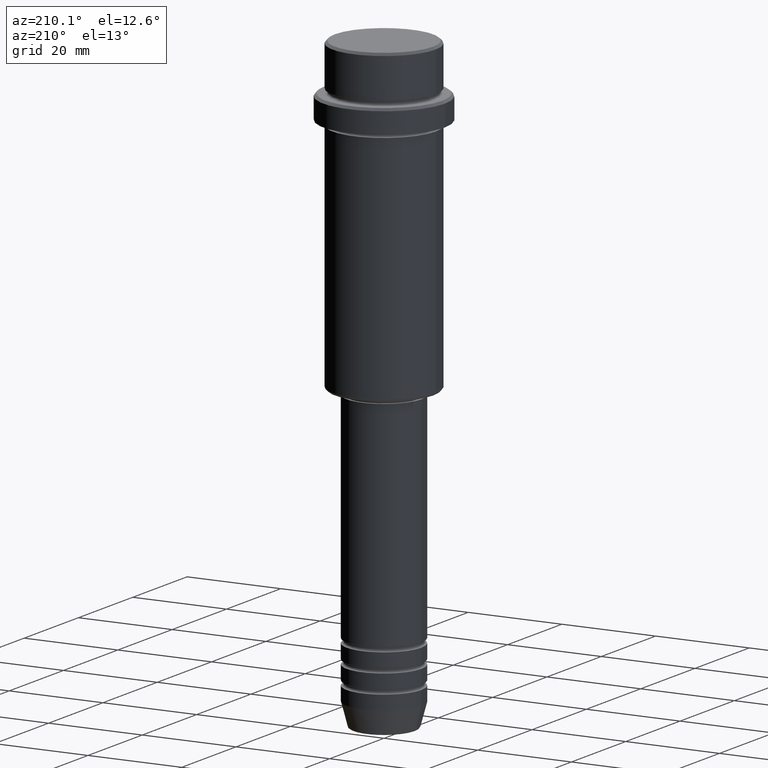
[diagram: clean part render]
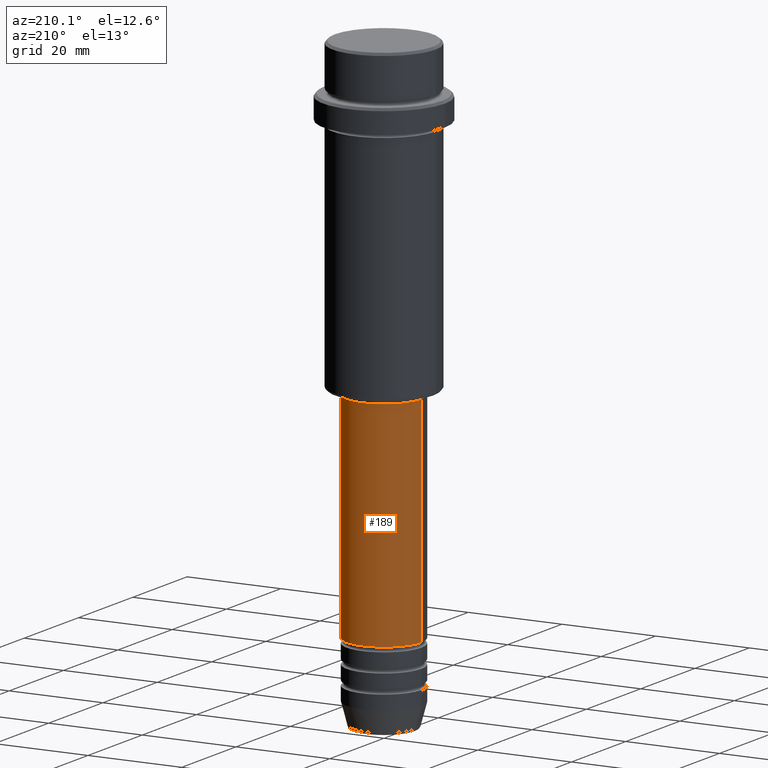
[diagram: same view with one face highlighted and labeled with its STEP entity id]
A machine part, auxiliary view. The second image highlights one B-rep face of the part: STEP entity #189.
In plain terms, the highlighted cylindrical surface (partial cylindrical patch) has radius 8 mm, axis along (-0, -0, 1).
Its self-contained STEP definition (entity closure, byte-faithful):
#7 = VERTEX_POINT ( 'NONE', #1386 ) ;
#58 = DIRECTION ( 'NONE',  ( -0.000000000000000000, -0.000000000000000000, 1.000000000000000000 ) ) ;
#87 = EDGE_CURVE ( 'NONE', #624, #749, #90, .T. ) ;
#90 = LINE ( 'NONE', #519, #1255 ) ;
#92 = ORIENTED_EDGE ( 'NONE', *, *, #542, .F. ) ;
#105 = CIRCLE ( 'NONE', #691, 8.000000000000000000 ) ;
#164 = EDGE_CURVE ( 'NONE', #296, #7, #797, .T. ) ;
#189 = ADVANCED_FACE ( 'NONE', ( #1299 ), #443, .T. ) ;
#200 = DIRECTION ( 'NONE',  ( -0.000000000000000000, -0.000000000000000000, 1.000000000000000000 ) ) ;
#220 = DIRECTION ( 'NONE',  ( 1.000000000000000000, 0.000000000000000000, 0.000000000000000000 ) ) ;
#231 = AXIS2_PLACEMENT_3D ( 'NONE', #1391, #58, #515 ) ;
#241 = ORIENTED_EDGE ( 'NONE', *, *, #164, .T. ) ;
#296 = VERTEX_POINT ( 'NONE', #674 ) ;
#389 = ORIENTED_EDGE ( 'NONE', *, *, #87, .F. ) ;
#391 = DIRECTION ( 'NONE',  ( -0.000000000000000000, -0.000000000000000000, 1.000000000000000000 ) ) ;
#443 = CYLINDRICAL_SURFACE ( 'NONE', #757, 8.000000000000000000 ) ;
#515 = DIRECTION ( 'NONE',  ( 1.000000000000000000, 0.000000000000000000, 0.000000000000000000 ) ) ;
#519 = CARTESIAN_POINT ( 'NONE',  ( 8.000000000000000000, 0.000000000000000000, 0.000000000000000000 ) ) ;
#532 = DIRECTION ( 'NONE',  ( -0.000000000000000000, -0.000000000000000000, 1.000000000000000000 ) ) ;
#542 = EDGE_CURVE ( 'NONE', #749, #7, #105, .T. ) ;
#546 = DIRECTION ( 'NONE',  ( 1.000000000000000000, 0.000000000000000000, 0.000000000000000000 ) ) ;
#624 = VERTEX_POINT ( 'NONE', #1356 ) ;
#674 = CARTESIAN_POINT ( 'NONE',  ( -8.000000000000000000, 9.797174393178825657E-16, -112.9999999999998721 ) ) ;
#691 = AXIS2_PLACEMENT_3D ( 'NONE', #1298, #532, #220 ) ;
#749 = VERTEX_POINT ( 'NONE', #1331 ) ;
#757 = AXIS2_PLACEMENT_3D ( 'NONE', #1414, #897, #546 ) ;
#797 = LINE ( 'NONE', #1247, #1365 ) ;
#875 = ORIENTED_EDGE ( 'NONE', *, *, #1071, .T. ) ;
#887 = EDGE_LOOP ( 'NONE', ( #875, #241, #92, #389 ) ) ;
#897 = DIRECTION ( 'NONE',  ( -0.000000000000000000, -0.000000000000000000, 1.000000000000000000 ) ) ;
#923 = CIRCLE ( 'NONE', #231, 8.000000000000000000 ) ;
#1071 = EDGE_CURVE ( 'NONE', #624, #296, #923, .T. ) ;
#1247 = CARTESIAN_POINT ( 'NONE',  ( -8.000000000000000000, 9.797174393178825657E-16, 0.000000000000000000 ) ) ;
#1255 = VECTOR ( 'NONE', #200, 1000.000000000000000 ) ;
#1298 = CARTESIAN_POINT ( 'NONE',  ( 0.000000000000000000, 0.000000000000000000, -67.00000000000000000 ) ) ;
#1299 = FACE_OUTER_BOUND ( 'NONE', #887, .T. ) ;
#1331 = CARTESIAN_POINT ( 'NONE',  ( 8.000000000000000000, 0.000000000000000000, -67.00000000000000000 ) ) ;
#1356 = CARTESIAN_POINT ( 'NONE',  ( 8.000000000000000000, 0.000000000000000000, -112.9999999999998721 ) ) ;
#1365 = VECTOR ( 'NONE', #391, 1000.000000000000000 ) ;
#1386 = CARTESIAN_POINT ( 'NONE',  ( -8.000000000000000000, 9.797174393178825657E-16, -67.00000000000000000 ) ) ;
#1391 = CARTESIAN_POINT ( 'NONE',  ( 0.000000000000000000, 0.000000000000000000, -112.9999999999998721 ) ) ;
#1414 = CARTESIAN_POINT ( 'NONE',  ( 0.000000000000000000, 0.000000000000000000, 0.000000000000000000 ) ) ;